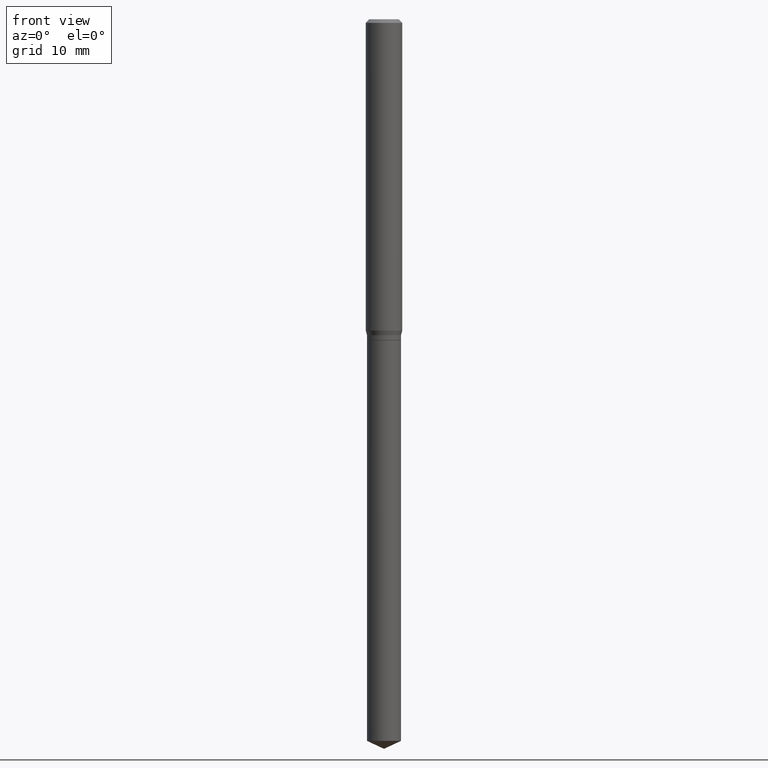
[diagram: clean part render]
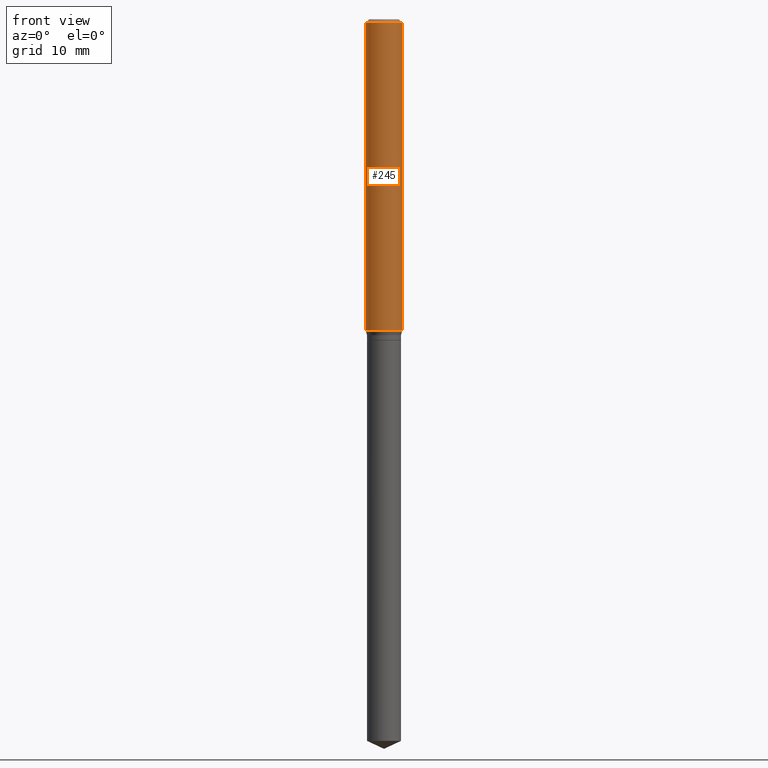
[diagram: same view with one face highlighted and labeled with its STEP entity id]
A machine part, front view. The second image highlights one B-rep face of the part: STEP entity #245.
In plain terms, the highlighted cylindrical surface (edge-blend (fillet) strip) has radius 1.4999 mm, axis along (-0, 0, 1).
Its self-contained STEP definition (entity closure, byte-faithful):
#7 = EDGE_CURVE ( 'NONE', #441, #477, #428, .T. ) ;
#48 = DIRECTION ( 'NONE',  ( 1.000000000000000000, -6.982962677686266711E-15, 4.876176775795935793E-29 ) ) ;
#55 = VERTEX_POINT ( 'NONE', #291 ) ;
#59 = ORIENTED_EDGE ( 'NONE', *, *, #295, .T. ) ;
#84 = ORIENTED_EDGE ( 'NONE', *, *, #319, .T. ) ;
#93 = CARTESIAN_POINT ( 'NONE',  ( -0.05904999999999999832, -1.360675682600244344E-15, -0.01181000000000007044 ) ) ;
#104 = VECTOR ( 'NONE', #347, 39.37007874015748143 ) ;
#107 = CARTESIAN_POINT ( 'NONE',  ( 2.888098660104663766E-31, -4.123439461173779647E-17, -0.01181000000000007044 ) ) ;
#124 = EDGE_LOOP ( 'NONE', ( #276, #84, #59, #163 ) ) ;
#128 = FACE_OUTER_BOUND ( 'NONE', #124, .T. ) ;
#146 = VECTOR ( 'NONE', #281, 39.37007874015748143 ) ;
#163 = ORIENTED_EDGE ( 'NONE', *, *, #447, .F. ) ;
#164 = DIRECTION ( 'NONE',  ( 1.000000000000000000, -6.982962677686266711E-15, 0.000000000000000000 ) ) ;
#169 = CARTESIAN_POINT ( 'NONE',  ( 0.05904999999999999832, -4.535783407291118600E-16, -0.01181000000000007044 ) ) ;
#220 = DIRECTION ( 'NONE',  ( -2.445468806185136597E-29, 3.491481338843145583E-15, 1.000000000000000000 ) ) ;
#225 = AXIS2_PLACEMENT_3D ( 'NONE', #107, #220, #290 ) ;
#235 = CARTESIAN_POINT ( 'NONE',  ( 0.000000000000000000, 0.000000000000000000, 0.000000000000000000 ) ) ;
#238 = DIRECTION ( 'NONE',  ( -2.445468806185136597E-29, 3.491481338843145583E-15, 1.000000000000000000 ) ) ;
#245 = ADVANCED_FACE ( 'NONE', ( #128 ), #433, .T. ) ;
#276 = ORIENTED_EDGE ( 'NONE', *, *, #7, .F. ) ;
#280 = VERTEX_POINT ( 'NONE', #169 ) ;
#281 = DIRECTION ( 'NONE',  ( -2.445468806185136877E-29, 3.491481338843145188E-15, 1.000000000000000000 ) ) ;
#290 = DIRECTION ( 'NONE',  ( 1.000000000000000000, -6.982962677686266711E-15, 0.000000000000000000 ) ) ;
#291 = CARTESIAN_POINT ( 'NONE',  ( 0.05905000000000011628, -3.931611887638806444E-15, -1.007958399310102893 ) ) ;
#293 = AXIS2_PLACEMENT_3D ( 'NONE', #235, #238, #48 ) ;
#295 = EDGE_CURVE ( 'NONE', #55, #280, #465, .T. ) ;
#316 = CARTESIAN_POINT ( 'NONE',  ( 0.05905000000000006077, -4.123439461173744764E-16, 2.879382386107503023E-30 ) ) ;
#319 = EDGE_CURVE ( 'NONE', #441, #55, #338, .T. ) ;
#332 = CARTESIAN_POINT ( 'NONE',  ( -0.05905000000000006077, 4.195754854663395916E-16, -2.904631170795524694E-30 ) ) ;
#338 = CIRCLE ( 'NONE', #400, 0.05905000000000011628 ) ;
#347 = DIRECTION ( 'NONE',  ( -2.445468806185136877E-29, 3.491481338843145188E-15, 1.000000000000000000 ) ) ;
#389 = DIRECTION ( 'NONE',  ( -2.445468806185136597E-29, 3.491481338843145583E-15, 1.000000000000000000 ) ) ;
#400 = AXIS2_PLACEMENT_3D ( 'NONE', #468, #389, #164 ) ;
#402 = CIRCLE ( 'NONE', #225, 0.05904999999999999832 ) ;
#409 = CARTESIAN_POINT ( 'NONE',  ( -0.05905000000000011628, -3.099692456055091636E-15, -1.007958399310102893 ) ) ;
#428 = LINE ( 'NONE', #332, #104 ) ;
#433 = CYLINDRICAL_SURFACE ( 'NONE', #293, 0.05905000000000006077 ) ;
#441 = VERTEX_POINT ( 'NONE', #409 ) ;
#447 = EDGE_CURVE ( 'NONE', #477, #280, #402, .T. ) ;
#465 = LINE ( 'NONE', #316, #146 ) ;
#468 = CARTESIAN_POINT ( 'NONE',  ( 2.464930823445158340E-29, -3.519267941521431524E-15, -1.007958399310102893 ) ) ;
#477 = VERTEX_POINT ( 'NONE', #93 ) ;